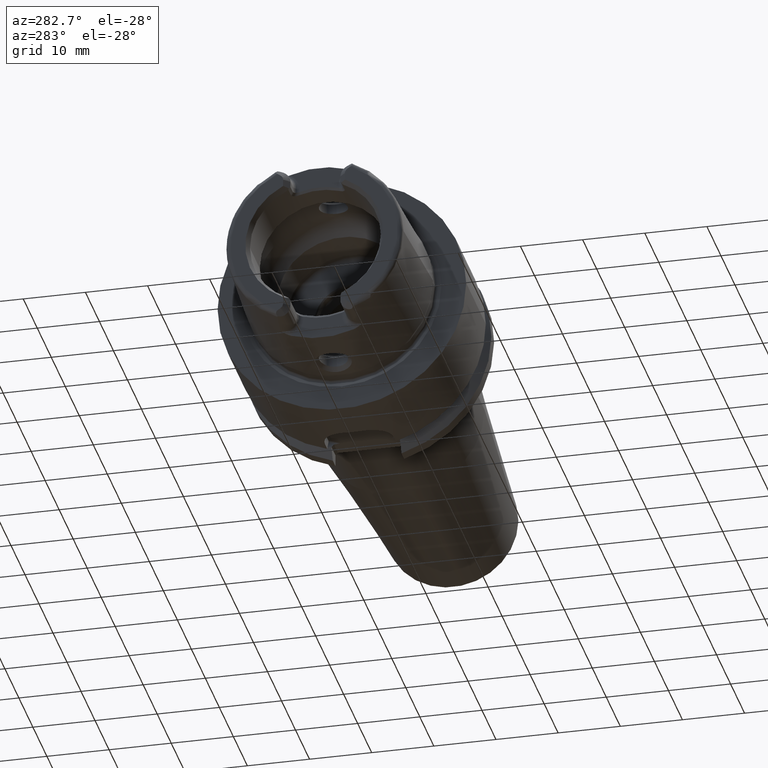
[diagram: clean part render]
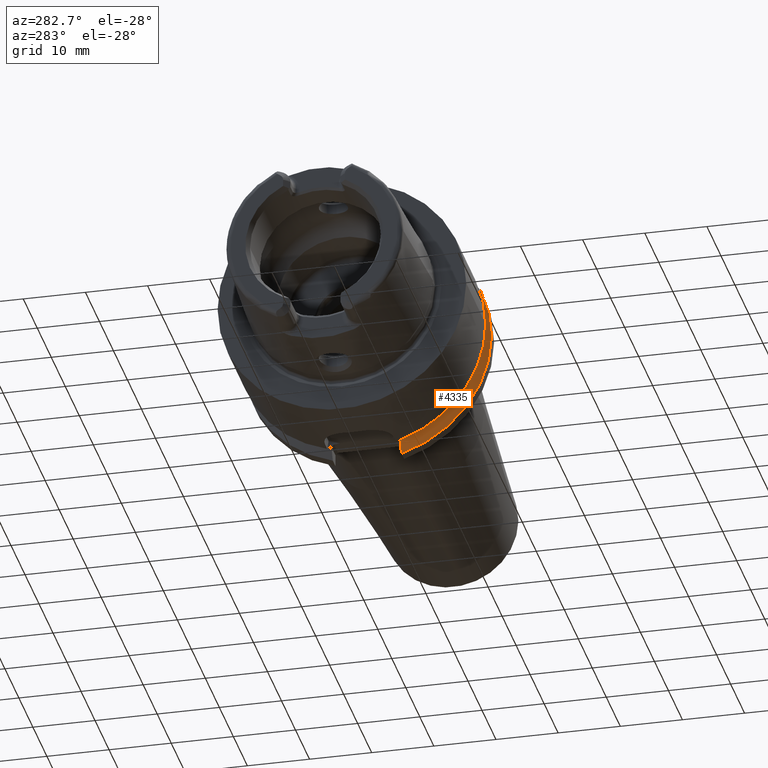
[diagram: same view with one face highlighted and labeled with its STEP entity id]
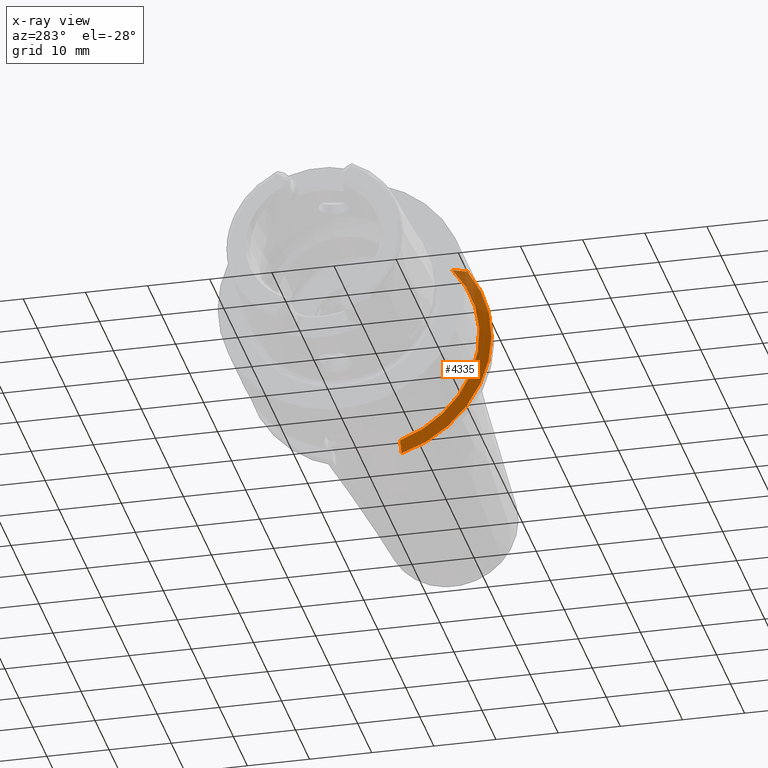
[diagram: x-ray of the same camera — body ghosted, the highlighted face saturated]
A machine part, auxiliary view. The second image highlights one B-rep face of the part: STEP entity #4335.
The next image is the same camera in x-ray: the body ghosted, the highlighted face saturated — about 10% of this face is hidden behind the body in this view.
In plain terms, the highlighted conical surface has half-angle 60 deg.
Its self-contained STEP definition (entity closure, byte-faithful):
#1012=CARTESIAN_POINT('',(1.803515969889E1,0.E0,0.E0));
#1013=DIRECTION('',(-1.E0,0.E0,0.E0));
#1014=DIRECTION('',(0.E0,-2.75875E-1,-9.611935207725E-1));
#1015=AXIS2_PLACEMENT_3D('',#1012,#1013,#1014);
#1137=CARTESIAN_POINT('',(1.70375E1,0.E0,0.E0));
#1138=DIRECTION('',(-1.E0,0.E0,0.E0));
#1139=DIRECTION('',(0.E0,-3.019647099833E-1,-9.533191039336E-1));
#1140=AXIS2_PLACEMENT_3D('',#1137,#1138,#1139);
#1703=CARTESIAN_POINT('',(1.70375E1,-1.390839973320E1,1.185E1));
#1704=CARTESIAN_POINT('',(1.713828706608E1,-1.413773688651E1,1.185E1));
#1705=CARTESIAN_POINT('',(1.734649495352E1,-1.460672643476E1,1.185E1));
#1706=CARTESIAN_POINT('',(1.767854805567E1,-1.534021584423E1,1.185E1));
#1707=CARTESIAN_POINT('',(1.791397076477E1,-1.585084160911E1,1.185E1));
#1708=CARTESIAN_POINT('',(1.803515969889E1,-1.611140900108E1,1.185E1));
#1830=CARTESIAN_POINT('',(1.70375E1,-5.5175E0,-1.741904925329E1));
#1831=CARTESIAN_POINT('',(1.714394007443E1,-5.5175E0,-1.761243635328E1));
#1832=CARTESIAN_POINT('',(1.735976434895E1,-5.5175E0,-1.800397218698E1));
#1833=CARTESIAN_POINT('',(1.769224491069E1,-5.5175E0,-1.860543234989E1));
#1834=CARTESIAN_POINT('',(1.791986940604E1,-5.5175E0,-1.901611969665E1));
#1835=CARTESIAN_POINT('',(1.803515969889E1,-5.5175E0,-1.922387041545E1));
#2894=CARTESIAN_POINT('',(1.70375E1,-5.5175E0,-1.741904925329E1));
#2896=VERTEX_POINT('',#2894);
#2897=VERTEX_POINT('',#1835);
#2950=CARTESIAN_POINT('',(1.70375E1,-1.390839973320E1,1.185E1));
#2951=VERTEX_POINT('',#2950);
#2952=VERTEX_POINT('',#1708);
#4321=CARTESIAN_POINT('',(1.753632984945E1,0.E0,0.E0));
#4322=DIRECTION('',(1.E0,0.E0,0.E0));
#4323=DIRECTION('',(0.E0,-1.E0,0.E0));
#4324=AXIS2_PLACEMENT_3D('',#4321,#4322,#4323);
#4325=CONICAL_SURFACE('',#4324,1.913600135643E1,6.E1);
#4326=ORIENTED_EDGE('',*,*,#4255,.F.);
#4328=ORIENTED_EDGE('',*,*,#4327,.F.);
#4330=ORIENTED_EDGE('',*,*,#4329,.T.);
#4332=ORIENTED_EDGE('',*,*,#4331,.T.);
#4333=EDGE_LOOP('',(#4326,#4328,#4330,#4332));
#4334=FACE_OUTER_BOUND('',#4333,.F.);
#4335=ADVANCED_FACE('',(#4334),#4325,.T.);
#1016=CIRCLE('',#1015,2.E1);
#1141=CIRCLE('',#1140,1.827200271285E1);
#1709=B_SPLINE_CURVE_WITH_KNOTS('',3,(#1703,#1704,#1705,#1706,#1707,#1708),
.UNSPECIFIED.,.F.,.F.,(4,1,1,4),(0.E0,3.333333333333E-1,6.666666666667E-1,1.E0),
.UNSPECIFIED.);
#1836=B_SPLINE_CURVE_WITH_KNOTS('',3,(#1830,#1831,#1832,#1833,#1834,#1835),
.UNSPECIFIED.,.F.,.F.,(4,1,1,4),(0.E0,3.333333333333E-1,6.666666666667E-1,1.E0),
.UNSPECIFIED.);
#4255=EDGE_CURVE('',#2897,#2952,#1016,.T.);
#4327=EDGE_CURVE('',#2896,#2897,#1836,.T.);
#4329=EDGE_CURVE('',#2896,#2951,#1141,.T.);
#4331=EDGE_CURVE('',#2951,#2952,#1709,.T.);